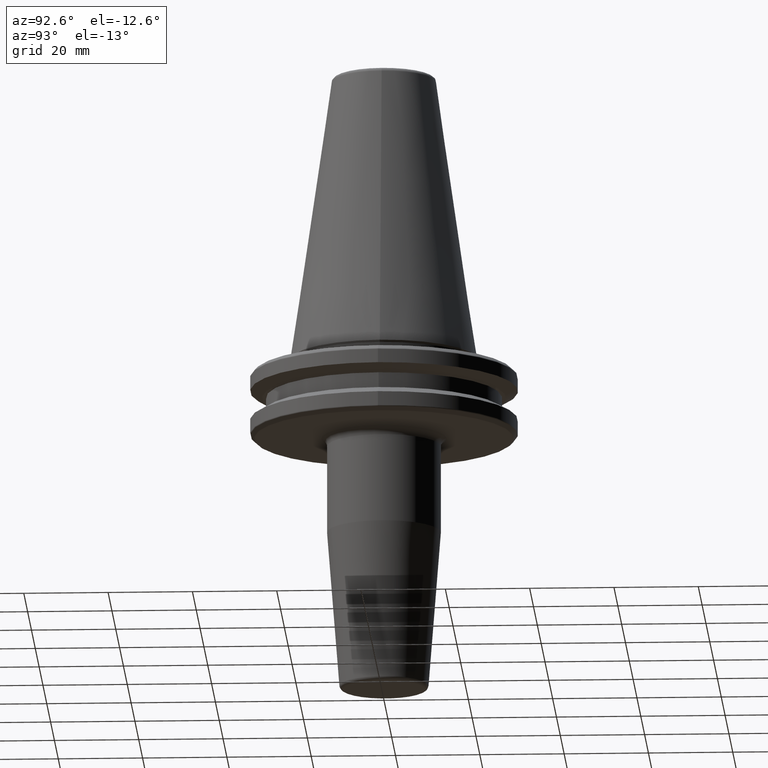
[diagram: clean part render]
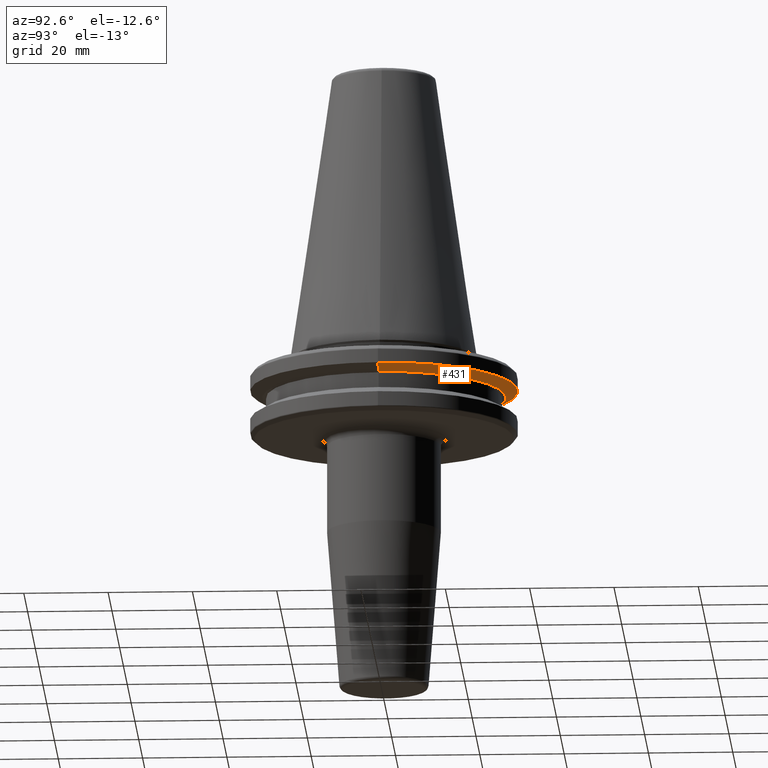
[diagram: same view with one face highlighted and labeled with its STEP entity id]
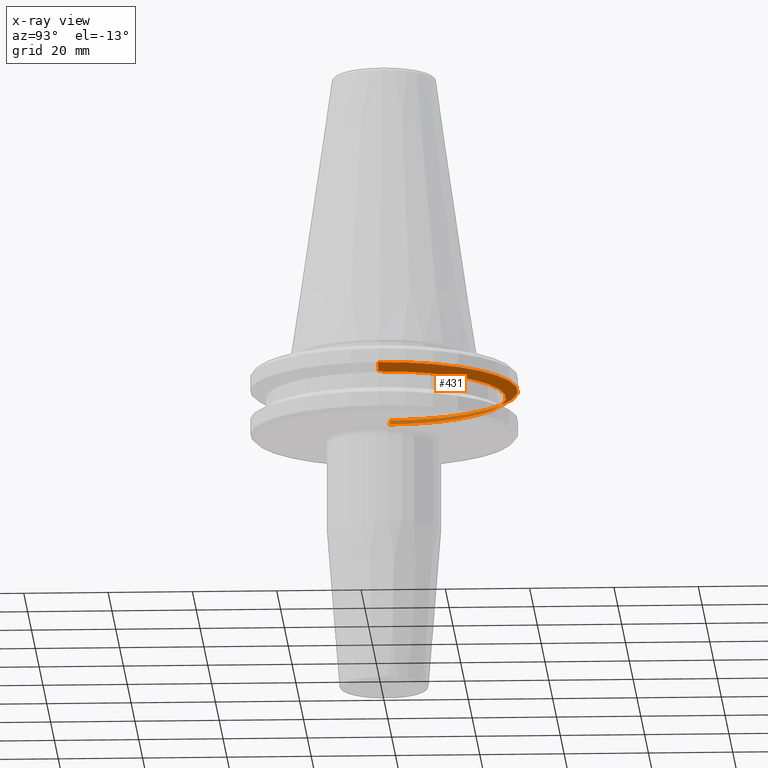
[diagram: x-ray of the same camera — body ghosted, the highlighted face saturated]
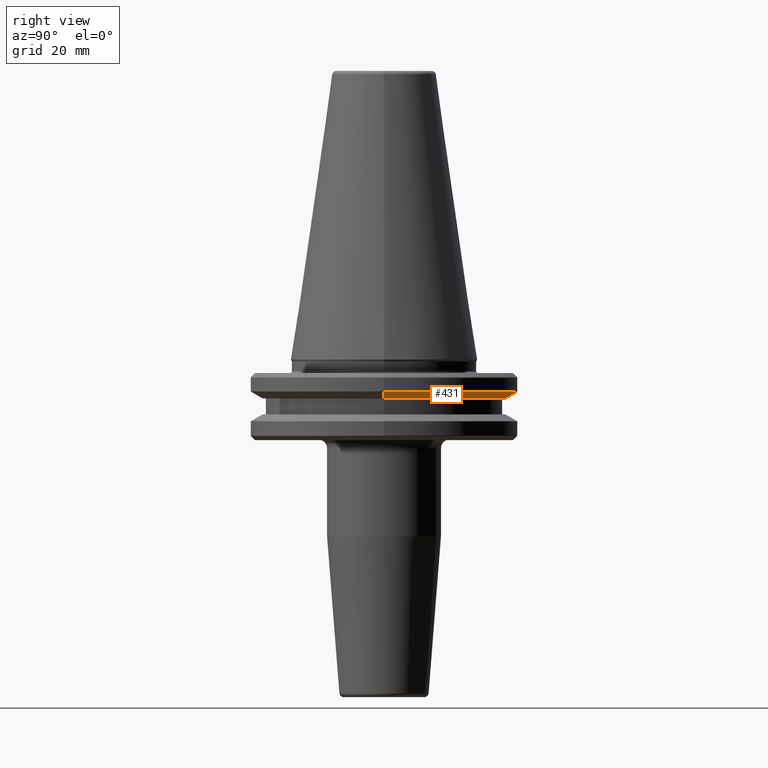
[diagram: same view with one face highlighted and labeled with its STEP entity id]
A machine part, auxiliary view. The second image highlights one B-rep face of the part: STEP entity #431.
The next image is the same camera in x-ray: the body ghosted, the highlighted face saturated — about 20% of this face is hidden behind the body in this view.
A second angle (right view) of the same face is appended — the face is thin or edge-on in the first view.
In plain terms, the highlighted conical surface has half-angle 60 deg.
Its self-contained STEP definition (entity closure, byte-faithful):
#38 = CARTESIAN_POINT ( 'NONE',  ( 28.94089653438084400, 0.0000000000000000000, -9.200000000000013500 ) ) ;
#121 = LINE ( 'NONE', #552, #865 ) ;
#123 = CARTESIAN_POINT ( 'NONE',  ( -31.75000000000000000, 3.888253587292846500E-015, -7.578163357943284800 ) ) ;
#169 = DIRECTION ( 'NONE',  ( 0.8660254037844390400, 0.0000000000000000000, 0.4999999999999993300 ) ) ;
#207 = DIRECTION ( 'NONE',  ( 1.000000000000000000, 0.0000000000000000000, 0.0000000000000000000 ) ) ;
#211 = EDGE_CURVE ( 'NONE', #665, #509, #420, .T. ) ;
#212 = DIRECTION ( 'NONE',  ( -0.0000000000000000000, -0.0000000000000000000, 1.000000000000000000 ) ) ;
#244 = FACE_OUTER_BOUND ( 'NONE', #891, .T. ) ;
#247 = CIRCLE ( 'NONE', #1191, 28.94089653438084400 ) ;
#250 = EDGE_CURVE ( 'NONE', #437, #509, #630, .T. ) ;
#280 = VERTEX_POINT ( 'NONE', #38 ) ;
#337 = EDGE_CURVE ( 'NONE', #280, #437, #247, .T. ) ;
#398 = CARTESIAN_POINT ( 'NONE',  ( -28.94089653438084400, 3.716245608910634800E-015, -9.200000000000013500 ) ) ;
#420 = CIRCLE ( 'NONE', #487, 31.75000000000000000 ) ;
#431 = ADVANCED_FACE ( 'NONE', ( #244 ), #964, .T. ) ;
#437 = VERTEX_POINT ( 'NONE', #398 ) ;
#469 = CARTESIAN_POINT ( 'NONE',  ( 31.75000000000000000, 0.0000000000000000000, -7.578163357943284800 ) ) ;
#487 = AXIS2_PLACEMENT_3D ( 'NONE', #1067, #881, #591 ) ;
#494 = ORIENTED_EDGE ( 'NONE', *, *, #211, .F. ) ;
#509 = VERTEX_POINT ( 'NONE', #677 ) ;
#523 = DIRECTION ( 'NONE',  ( -0.0000000000000000000, -0.0000000000000000000, 1.000000000000000000 ) ) ;
#540 = EDGE_CURVE ( 'NONE', #280, #665, #121, .T. ) ;
#552 = CARTESIAN_POINT ( 'NONE',  ( 31.75000000000000000, 0.0000000000000000000, -7.578163357943284800 ) ) ;
#591 = DIRECTION ( 'NONE',  ( 1.000000000000000000, 0.0000000000000000000, 0.0000000000000000000 ) ) ;
#630 = LINE ( 'NONE', #123, #1143 ) ;
#665 = VERTEX_POINT ( 'NONE', #469 ) ;
#677 = CARTESIAN_POINT ( 'NONE',  ( -31.75000000000000000, 3.888253587292846500E-015, -7.578163357943284800 ) ) ;
#688 = ORIENTED_EDGE ( 'NONE', *, *, #337, .T. ) ;
#717 = DIRECTION ( 'NONE',  ( 1.000000000000000000, 0.0000000000000000000, 0.0000000000000000000 ) ) ;
#865 = VECTOR ( 'NONE', #169, 1000.000000000000000 ) ;
#881 = DIRECTION ( 'NONE',  ( -0.0000000000000000000, -0.0000000000000000000, 1.000000000000000000 ) ) ;
#891 = EDGE_LOOP ( 'NONE', ( #688, #1216, #494, #904 ) ) ;
#892 = CARTESIAN_POINT ( 'NONE',  ( 0.0000000000000000000, 0.0000000000000000000, -7.578163357943284800 ) ) ;
#904 = ORIENTED_EDGE ( 'NONE', *, *, #540, .F. ) ;
#964 = CONICAL_SURFACE ( 'NONE', #1183, 31.75000000000000000, 1.047197551196598500 ) ;
#1000 = DIRECTION ( 'NONE',  ( -0.8660254037844390400, 1.060575238724907400E-016, 0.4999999999999993300 ) ) ;
#1067 = CARTESIAN_POINT ( 'NONE',  ( 0.0000000000000000000, 0.0000000000000000000, -7.578163357943284800 ) ) ;
#1143 = VECTOR ( 'NONE', #1000, 1000.000000000000000 ) ;
#1183 = AXIS2_PLACEMENT_3D ( 'NONE', #892, #212, #207 ) ;
#1191 = AXIS2_PLACEMENT_3D ( 'NONE', #1206, #523, #717 ) ;
#1206 = CARTESIAN_POINT ( 'NONE',  ( 0.0000000000000000000, 0.0000000000000000000, -9.200000000000013500 ) ) ;
#1216 = ORIENTED_EDGE ( 'NONE', *, *, #250, .T. ) ;